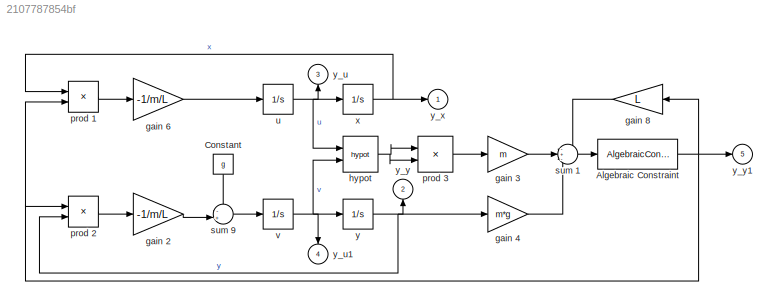
MODEL slx_2107787854bf
KIND model
CONFIG AbsTol = 1e-6
CONFIG EnableMultiTasking = off
CONFIG FixedStep = auto
CONFIG MaxStep = auto
CONFIG MinStep = auto
CONFIG RelTol = 1e-4
CONFIG SampleTimeConstraint = Unconstrained
CONFIG Solver = ode23t
CONFIG SolverName = ode23t
CONFIG StartTime = 0.0
CONFIG StopTime = 4
WORKSPACE source: mxarray member
WORKSPACE L = 1
WORKSPACE g = 9.81
WORKSPACE lambda0 = 0
WORKSPACE m = 1
WORKSPACE omega0 = 0
WORKSPACE theta0 = 1.57079632679
WORKSPACE u0 = 0
WORKSPACE v0 = 0
WORKSPACE x0 = 1
WORKSPACE y0 = 0
BLOCK [AlgebraicConstraint] Algebraic Constraint
  InitialGuess = -lambda0
  Solver = Trust region
BLOCK [Constant] Constant
  NameLocation = left
  Value = g
BLOCK [Gain] gain 2
  Gain = -1/m/L
BLOCK [Gain] gain 3
  Gain = m
BLOCK [Gain] gain 4
  Gain = m*g
BLOCK [Gain] gain 6
  Gain = -1/m/L
BLOCK [Gain] gain 8
  Gain = L
BLOCK [Math] hypot
  Operator = hypot
  Ports = [2, 1]
  SignedPower = on
BLOCK [Product] prod 1
  Ports = [2, 1]
BLOCK [Product] prod 2
  Ports = [2, 1]
BLOCK [Product] prod 3
  Ports = [2, 1]
BLOCK [Sum] sum 1
  Inputs = -+-
  Ports = [3, 1]
BLOCK [Sum] sum 9
  Inputs = -+|
  Ports = [2, 1]
BLOCK [Integrator] u
  InitialCondition = u0
  Ports = [1, 1]
BLOCK [Integrator] v
  InitialCondition = v0
  Ports = [1, 1]
BLOCK [Integrator] x
  InitialCondition = x0
  Ports = [1, 1]
BLOCK [Integrator] y
  InitialCondition = y0
  Ports = [1, 1]
BLOCK [Outport] y_u
  NameLocation = left
  Port = 3
  VectorParamsAs1DForOutWhenUnconnected = off
BLOCK [Outport] y_u1
  NameLocation = left
  Port = 4
  VectorParamsAs1DForOutWhenUnconnected = off
BLOCK [Outport] y_x
  NameLocation = top
  VectorParamsAs1DForOutWhenUnconnected = off
BLOCK [Outport] y_y
  NameLocation = right
  Port = 2
  VectorParamsAs1DForOutWhenUnconnected = off
BLOCK [Outport] y_y1
  Port = 5
  VectorParamsAs1DForOutWhenUnconnected = off
NET Algebraic Constraint:1 -> gain 8:1, prod 1:2, prod 2:1, y_y1:1
LINE Constant:1 -> sum 9:1
LINE gain 2:1 -> sum 9:2
LINE gain 3:1 -> sum 1:2
LINE gain 4:1 -> sum 1:3
LINE gain 6:1 -> u:1
LINE gain 8:1 -> sum 1:1
NET hypot:1 -> prod 3:1, prod 3:2
LINE prod 1:1 -> gain 6:1
LINE prod 2:1 -> gain 2:1
LINE prod 3:1 -> gain 3:1
LINE sum 1:1 -> Algebraic Constraint:1
LINE sum 9:1 -> v:1
NET u:1 -> hypot:1, x:1, y_u:1
NET v:1 -> hypot:2, y:1, y_u1:1
NET x:1 -> prod 1:1, y_x:1
NET y:1 -> gain 4:1, prod 2:2, y_y:1
note: NET lines group one-source signal fan-out (src -> all destinations, sorted); 1:1 wires keep LINE
